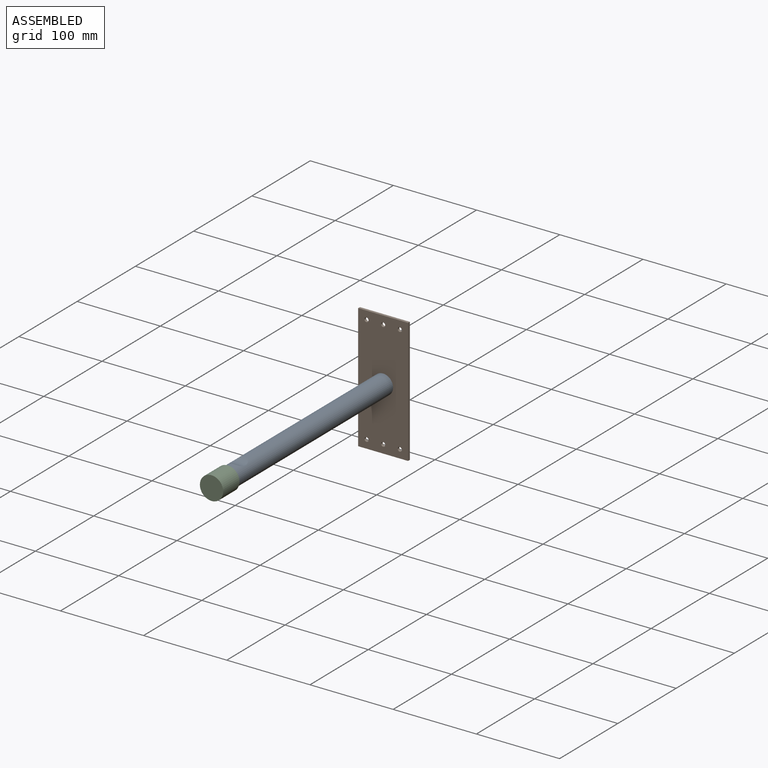
[diagram: assembled view]
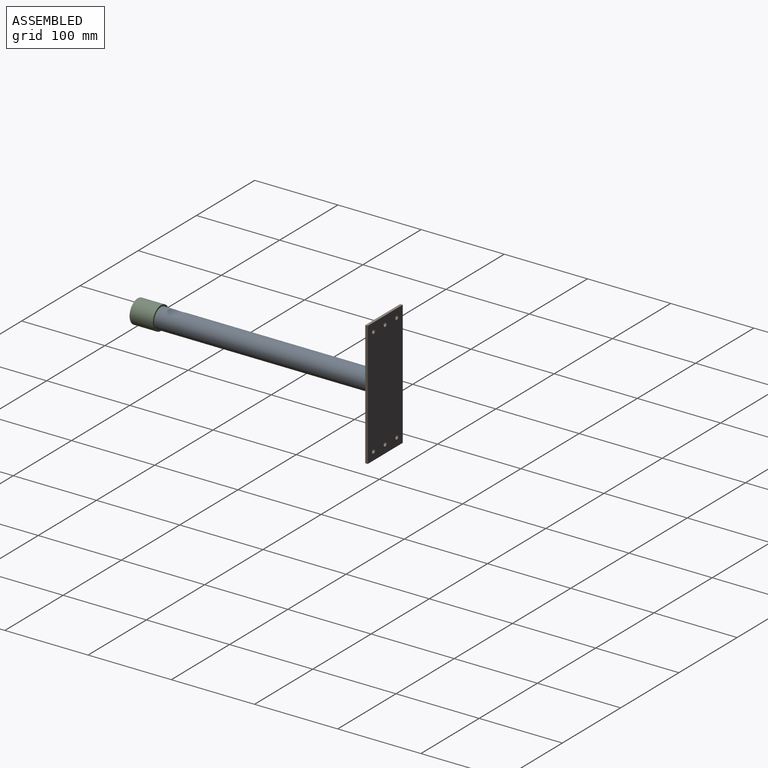
[diagram: assembled view, second angle]
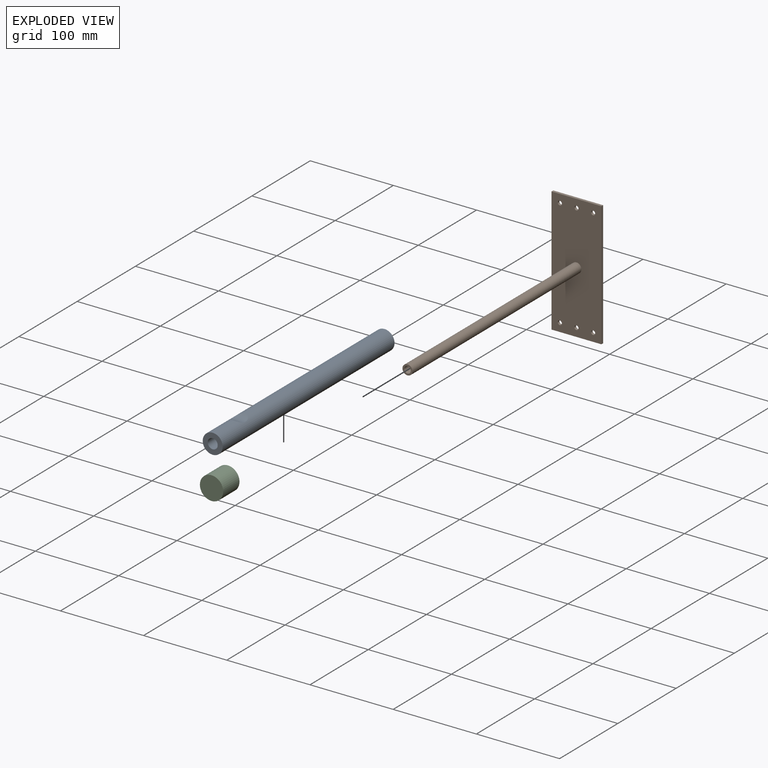
[diagram: exploded view]
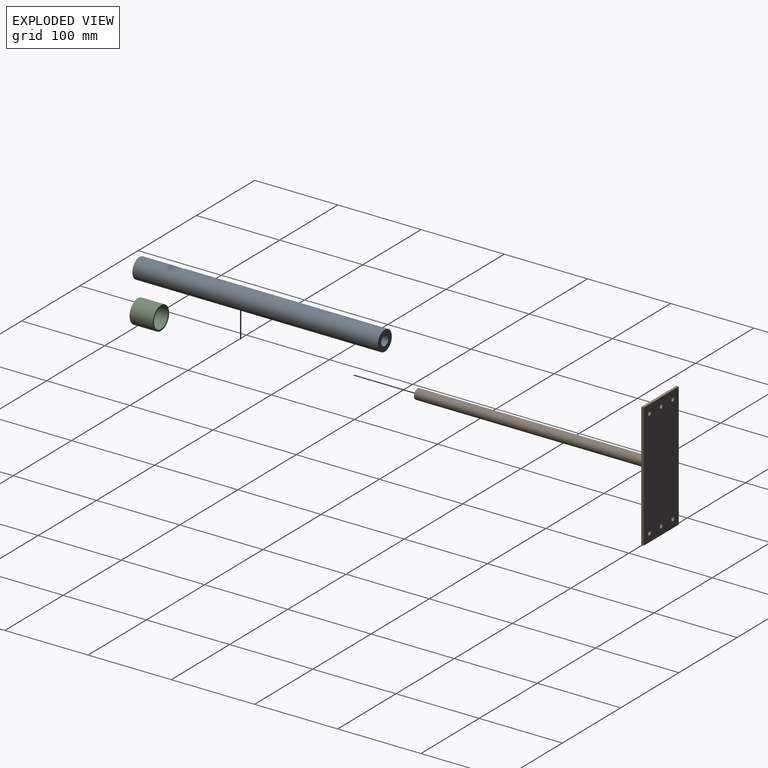
[diagram: exploded view, second angle]
ASSEMBLY  parts=3 mates=2
PART A: 5 faces, bbox 24x295x24 mm
  f0: cylinder r=6mm len=295mm, axis (0,1,0), area 11121.2mm2, adj f2,f3
  f1: cylinder r=12mm len=295mm, axis (0,1,0), area 21974.2mm2, adj f2,f3,f4
  f2: plane 24x24mm, normal (0,-1,0), area 339.3mm2, adj f0,f1
  f3: plane 24x24mm, normal (0,1,0), area 339.3mm2, adj f0,f1
  f4: cylinder r=17.5mm len=19.6mm, axis (1,0,0), area 263mm2, adj f1
PART B: 16 faces, bbox 60x293x150 mm
  f0: plane 150x3mm, normal (-1,0,0), area 450mm2, adj f1,f3,f4,f5
  f1: plane 60x3mm, normal (0,0,-1), area 180mm2, adj f0,f2,f4,f5
  f2: plane 150x3mm, normal (1,0,0), area 450mm2, adj f1,f3,f4,f5
  f3: plane 60x3mm, normal (0,0,1), area 180mm2, adj f0,f2,f4,f5
  f4: plane 150x60mm, normal (0,-1,0), area 8769.1mm2, adj f0,f1,f2,f3,f7,f10,f11,f12
  f5: plane 150x60mm, normal (0,1,0), area 8882.2mm2, adj f0,f1,f2,f3,f10,f11,f12,f13
  f6: cylinder r=4mm len=290mm, axis (0,1,0), area 7288.5mm2, adj f8,f9
  f7: cylinder r=6mm len=290mm, axis (0,1,0), area 10932.7mm2, adj f4,f8
  f8: plane 12x12mm, normal (0,-1,0), area 62.8mm2, adj f6,f7
  f9: plane 8x8mm, normal (0,-1,0), area 50.3mm2, adj f6
  f10: cylinder r=2.5mm len=5mm, axis (0,-1,0), area 47.1mm2, adj f4,f5
  f11: cylinder r=2.5mm len=5mm, axis (0,-1,0), area 47.1mm2, adj f4,f5
  f12: cylinder r=2.5mm len=5mm, axis (0,-1,0), area 47.1mm2, adj f4,f5
  f13: cylinder r=2.5mm len=5mm, axis (0,-1,0), area 47.1mm2, adj f4,f5
  f14: cylinder r=2.5mm len=5mm, axis (0,-1,0), area 47.1mm2, adj f4,f5
  f15: cylinder r=2.5mm len=5mm, axis (0,-1,0), area 47.1mm2, adj f4,f5
PART C: 5 faces, bbox 28x28x28 mm
  f0: cylinder r=12mm len=26mm, axis (0,1,0), area 1960.4mm2, adj f3,f4
  f1: cylinder r=14mm len=28mm, axis (0,1,0), area 2463mm2, adj f2,f3
  f2: plane 28x28mm, normal (0,-1,0), area 615.8mm2, adj f1
  f3: plane 28x28mm, normal (0,1,0), area 163.4mm2, adj f0,f1
  f4: plane 24x24mm, normal (0,1,0), area 452.4mm2, adj f0
PLACE A t=(-43.63,76,-59.72)mm
PLACE B t=(-43.63,76.5,-59.72)mm fixed
PLACE C t=(-43.63,-193,-59.72)mm
MATE revolute A.f0 <-> B.f6  axis (0,1,0) through (-43.63,-71.5,-59.72)mm
MATE revolute C.f0 <-> A.f0  axis (0,1,0) through (-43.63,-193,-59.72)mm
